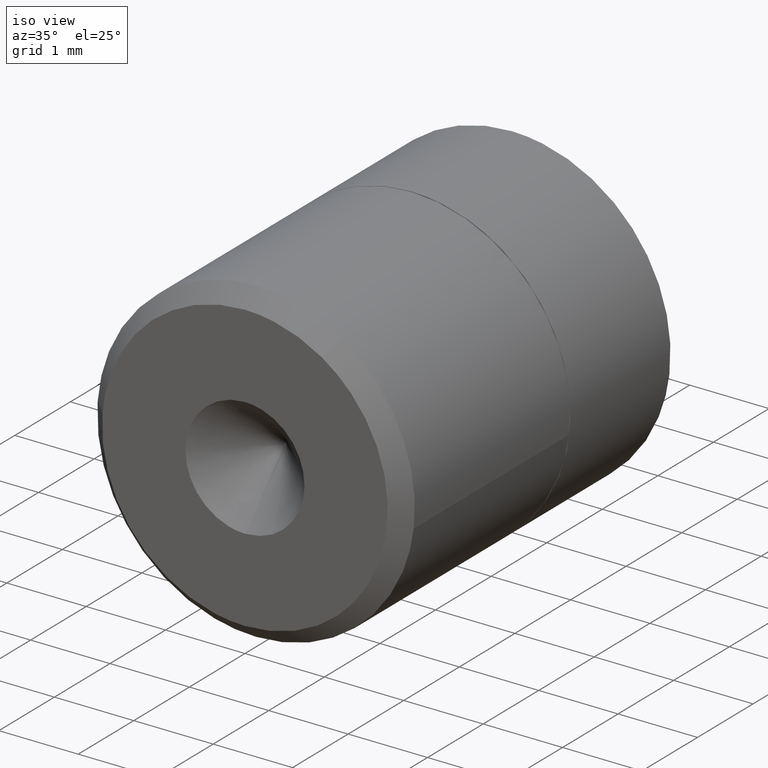
[diagram: clean part render]
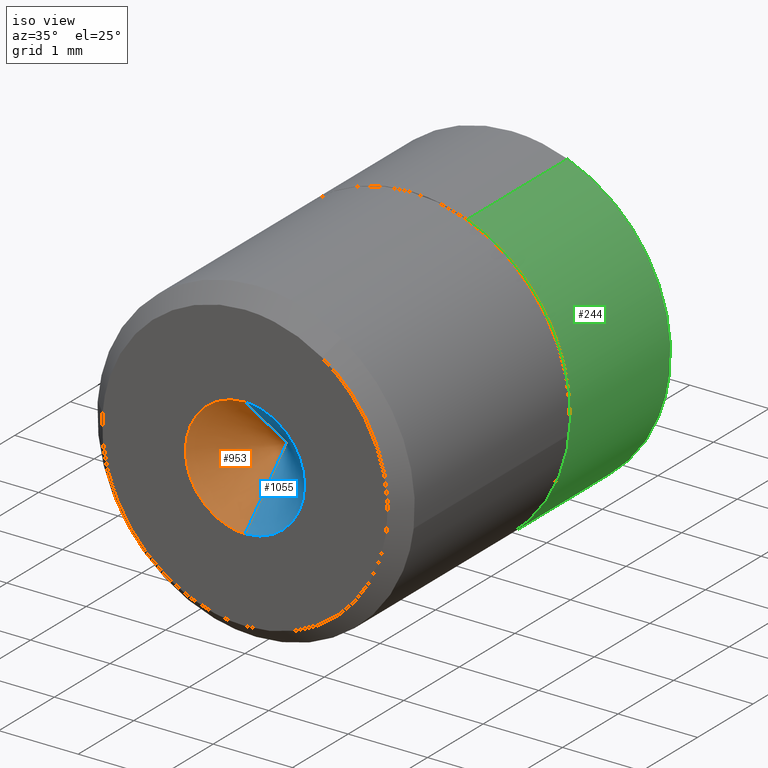
[diagram: same view with three faces highlighted in distinct colors, each labeled with its STEP entity id]
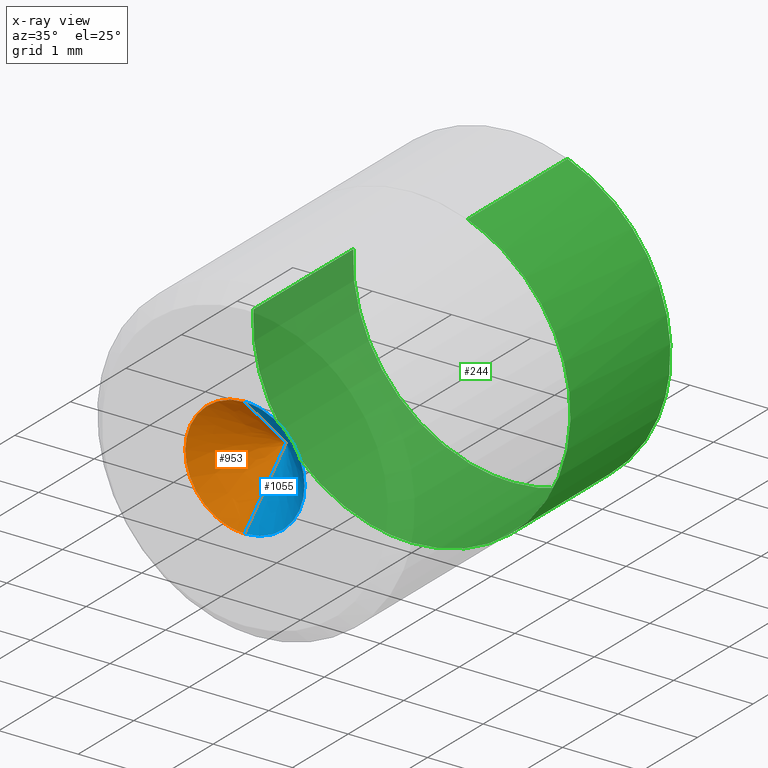
[diagram: x-ray of the same camera — body ghosted, the three highlighted faces saturated]
A machine part, iso view with three faces highlighted in distinct colors.
The next image is the same camera in x-ray (body ghosted, the three faces saturated) — at least one of them is partly hidden behind the body in this view.
Their STEP definitions:

[orange] entity #953 — the highlighted face is a freeform B-spline surface patch.
#902=CARTESIAN_POINT('',(0.0,0.750000000000014,-7.277231E-015));
#903=CARTESIAN_POINT('',(0.006712614727889,-0.019218750000000,-0.769189460507041));
#904=CARTESIAN_POINT('',(0.0,0.750000000000014,-7.277231E-015));
#905=CARTESIAN_POINT('',(-0.789806388675358,-0.019218750000000,-0.776140576542567));
#906=CARTESIAN_POINT('',(0.0,0.750000000000014,-7.277231E-015));
#907=CARTESIAN_POINT('',(-0.768955157946057,-0.019218750000000,0.020135799456190));
#908=CARTESIAN_POINT('',(0.0,0.750000000000014,-7.277231E-015));
#909=CARTESIAN_POINT('',(-0.748103927216757,-0.019218750000000,0.816412175454947));
#910=CARTESIAN_POINT('',(0.0,0.750000000000014,-7.277231E-015));
#911=CARTESIAN_POINT('',(0.046959681270329,-0.019218750000000,0.767784001973579));
#919=(BOUNDED_SURFACE()B_SPLINE_SURFACE(1,2,((#902,#904,#906,#908,#910),(#903,#905,#907,#909,#911)),.UNSPECIFIED.,.F.,.F.,.U.)B_SPLINE_SURFACE_WITH_KNOTS((2,2),(3,2,3),(0.0,1.0),(0.0,1.0,2.0),.UNSPECIFIED.)GEOMETRIC_REPRESENTATION_ITEM()RATIONAL_B_SPLINE_SURFACE(((1.0,0.694658370458997,1.0,0.694658370458997,1.0),(1.0,0.694658370458997,1.0,0.694658370458997,1.0)))REPRESENTATION_ITEM('')SURFACE());
#920=CARTESIAN_POINT('',(0.0,4.517509E-017,0.750000000000008));
#921=VERTEX_POINT('',#920);
#922=CARTESIAN_POINT('',(0.0,4.517509E-017,-0.750000000000022));
#923=VERTEX_POINT('',#922);
#924=CARTESIAN_POINT('',(0.0,0.0,0.750000000000008));
#925=CARTESIAN_POINT('',(-0.750000000000015,0.0,0.750000000000008));
#926=CARTESIAN_POINT('',(-0.750000000000015,0.0,-7.277231E-015));
#927=CARTESIAN_POINT('',(-0.750000000000015,0.0,-0.750000000000022));
#928=CARTESIAN_POINT('',(0.0,0.0,-0.750000000000022));
#936=(BOUNDED_CURVE()B_SPLINE_CURVE(2,(#924,#925,#926,#927,#928),.UNSPECIFIED.,.F.,.U.)B_SPLINE_CURVE_WITH_KNOTS((3,2,3),(0.0,0.500000000000000,1.0),.UNSPECIFIED.)CURVE()GEOMETRIC_REPRESENTATION_ITEM()RATIONAL_B_SPLINE_CURVE((1.0,0.707106781186548,1.0,0.707106781186548,1.0))REPRESENTATION_ITEM(''));
#937=EDGE_CURVE('',#921,#923,#936,.T.);
#938=ORIENTED_EDGE('',*,*,#937,.T.);
#939=CARTESIAN_POINT('',(0.0,0.750000000000011,-7.277231E-015));
#940=VERTEX_POINT('',#939);
#941=CARTESIAN_POINT('',(0.0,0.750000000000011,-7.277231E-015));
#942=CARTESIAN_POINT('',(0.0,4.517509E-017,-0.750000000000022));
#943=QUASI_UNIFORM_CURVE('',1,(#941,#942),.UNSPECIFIED.,.F.,.U.);
#944=EDGE_CURVE('',#940,#923,#943,.T.);
#945=ORIENTED_EDGE('',*,*,#944,.F.);
#946=CARTESIAN_POINT('',(0.0,0.750000000000011,-7.277231E-015));
#947=CARTESIAN_POINT('',(0.0,4.517509E-017,0.750000000000008));
#948=QUASI_UNIFORM_CURVE('',1,(#946,#947),.UNSPECIFIED.,.F.,.U.);
#949=EDGE_CURVE('',#940,#921,#948,.T.);
#950=ORIENTED_EDGE('',*,*,#949,.T.);
#951=EDGE_LOOP('',(#938,#945,#950));
#952=FACE_OUTER_BOUND('',#951,.T.);
#953=ADVANCED_FACE('',(#952),#919,.F.);

[blue] entity #1055 — the highlighted face is a freeform B-spline surface patch.
#920=CARTESIAN_POINT('',(0.0,4.517509E-017,0.750000000000008));
#921=VERTEX_POINT('',#920);
#922=CARTESIAN_POINT('',(0.0,4.517509E-017,-0.750000000000022));
#923=VERTEX_POINT('',#922);
#939=CARTESIAN_POINT('',(0.0,0.750000000000011,-7.277231E-015));
#940=VERTEX_POINT('',#939);
#941=CARTESIAN_POINT('',(0.0,0.750000000000011,-7.277231E-015));
#942=CARTESIAN_POINT('',(0.0,4.517509E-017,-0.750000000000022));
#943=QUASI_UNIFORM_CURVE('',1,(#941,#942),.UNSPECIFIED.,.F.,.U.);
#944=EDGE_CURVE('',#940,#923,#943,.T.);
#946=CARTESIAN_POINT('',(0.0,0.750000000000011,-7.277231E-015));
#947=CARTESIAN_POINT('',(0.0,4.517509E-017,0.750000000000008));
#948=QUASI_UNIFORM_CURVE('',1,(#946,#947),.UNSPECIFIED.,.F.,.U.);
#949=EDGE_CURVE('',#940,#921,#948,.T.);
#1013=CARTESIAN_POINT('',(0.0,0.0,-0.750000000000022));
#1014=CARTESIAN_POINT('',(0.750000000000015,0.0,-0.750000000000022));
#1015=CARTESIAN_POINT('',(0.750000000000015,0.0,-7.277231E-015));
#1016=CARTESIAN_POINT('',(0.750000000000015,0.0,0.750000000000008));
#1017=CARTESIAN_POINT('',(0.0,0.0,0.750000000000008));
#1025=(BOUNDED_CURVE()B_SPLINE_CURVE(2,(#1013,#1014,#1015,#1016,#1017),.UNSPECIFIED.,.F.,.U.)B_SPLINE_CURVE_WITH_KNOTS((3,2,3),(0.0,0.500000000000000,1.0),.UNSPECIFIED.)CURVE()GEOMETRIC_REPRESENTATION_ITEM()RATIONAL_B_SPLINE_CURVE((1.0,0.707106781186548,1.0,0.707106781186548,1.0))REPRESENTATION_ITEM(''));
#1026=EDGE_CURVE('',#923,#921,#1025,.T.);
#1032=CARTESIAN_POINT('',(0.0,0.750000000000014,-7.277231E-015));
#1033=CARTESIAN_POINT('',(-0.020135799456198,-0.019218750000000,0.768955157946050));
#1034=CARTESIAN_POINT('',(0.0,0.750000000000014,-7.277231E-015));
#1035=CARTESIAN_POINT('',(0.790173863219640,-0.019218750000000,0.790173863219635));
#1036=CARTESIAN_POINT('',(0.0,0.750000000000014,-7.277231E-015));
#1037=CARTESIAN_POINT('',(0.768955157946057,-0.019218750000000,-0.020135799456203));
#1038=CARTESIAN_POINT('',(0.0,0.750000000000014,-7.277231E-015));
#1039=CARTESIAN_POINT('',(0.747736452672475,-0.019218750000000,-0.830445462132042));
#1040=CARTESIAN_POINT('',(0.0,0.750000000000014,-7.277231E-015));
#1041=CARTESIAN_POINT('',(-0.060352207541903,-0.019218750000000,-0.766847505307552));
#1049=(BOUNDED_SURFACE()B_SPLINE_SURFACE(1,2,((#1032,#1034,#1036,#1038,#1040),(#1033,#1035,#1037,#1039,#1041)),.UNSPECIFIED.,.F.,.F.,.U.)B_SPLINE_SURFACE_WITH_KNOTS((2,2),(3,2,3),(0.0,1.0),(0.0,1.0,2.0),.UNSPECIFIED.)GEOMETRIC_REPRESENTATION_ITEM()RATIONAL_B_SPLINE_SURFACE(((1.0,0.688354575693754,1.0,0.688354575693754,1.0),(1.0,0.688354575693754,1.0,0.688354575693754,1.0)))REPRESENTATION_ITEM('')SURFACE());
#1050=ORIENTED_EDGE('',*,*,#944,.T.);
#1051=ORIENTED_EDGE('',*,*,#1026,.T.);
#1052=ORIENTED_EDGE('',*,*,#949,.F.);
#1053=EDGE_LOOP('',(#1050,#1051,#1052));
#1054=FACE_OUTER_BOUND('',#1053,.T.);
#1055=ADVANCED_FACE('',(#1054),#1049,.F.);

[green] entity #244 — the highlighted face is a freeform B-spline surface patch.
#62=CARTESIAN_POINT('',(0.703235474031004,4.800003000000000,1.872287335871314));
#63=VERTEX_POINT('',#62);
#79=CARTESIAN_POINT('',(-1.996269596843765,4.800002999999885,0.122097079070154));
#80=VERTEX_POINT('',#79);
#94=CARTESIAN_POINT('',(-1.996269638693471,3.0,0.122096394828707));
#95=VERTEX_POINT('',#94);
#96=CARTESIAN_POINT('',(-1.996269596843765,4.800002999999885,0.122097079070154));
#97=CARTESIAN_POINT('',(-1.996269638693471,3.0,0.122096394828707));
#98=QUASI_UNIFORM_CURVE('',1,(#96,#97),.UNSPECIFIED.,.F.,.U.);
#99=EDGE_CURVE('',#80,#95,#98,.T.);
#116=CARTESIAN_POINT('',(0.703235363436929,3.0,1.872287377410666));
#117=VERTEX_POINT('',#116);
#131=CARTESIAN_POINT('',(0.703235474031004,4.800003000000000,1.872287335871314));
#132=CARTESIAN_POINT('',(0.703235363436929,3.0,1.872287377410666));
#133=QUASI_UNIFORM_CURVE('',1,(#131,#132),.UNSPECIFIED.,.F.,.U.);
#134=EDGE_CURVE('',#63,#117,#133,.T.);
#139=CARTESIAN_POINT('',(-1.996269596843733,4.845003075000000,0.122097079069707));
#140=CARTESIAN_POINT('',(-2.118366675913447,4.845003074999999,-1.874172517774027));
#141=CARTESIAN_POINT('',(-0.122097079069714,4.845003075000000,-1.996269596843741));
#142=CARTESIAN_POINT('',(1.874172517774020,4.845003074999999,-2.118366675913454));
#143=CARTESIAN_POINT('',(1.996269596843733,4.845003075000000,-0.122097079069721));
#144=CARTESIAN_POINT('',(2.086474445738684,4.845003074999999,1.352739163606123));
#145=CARTESIAN_POINT('',(0.703235948783144,4.845003075000000,1.872287157553307));
#146=CARTESIAN_POINT('',(-1.996269596843733,2.953874923124999,0.122097079069707));
#147=CARTESIAN_POINT('',(-2.118366675913447,2.953874923124999,-1.874172517774027));
#148=CARTESIAN_POINT('',(-0.122097079069714,2.953874923124999,-1.996269596843741));
#149=CARTESIAN_POINT('',(1.874172517774020,2.953874923124999,-2.118366675913454));
#150=CARTESIAN_POINT('',(1.996269596843733,2.953874923124999,-0.122097079069721));
#151=CARTESIAN_POINT('',(2.086474445738684,2.953874923124999,1.352739163606123));
#152=CARTESIAN_POINT('',(0.703235948783144,2.953874923125000,1.872287157553307));
#160=(BOUNDED_SURFACE()B_SPLINE_SURFACE(2,1,((#139,#146),(#140,#147),(#141,#148),(#142,#149),(#143,#150),(#144,#151),(#145,#152)),.UNSPECIFIED.,.F.,.F.,.U.)B_SPLINE_SURFACE_WITH_KNOTS((3,2,2,3),(2,2),(0.0,3.313708498984759,6.627416997969518,9.278383797157325),(0.0,1.0),.UNSPECIFIED.)GEOMETRIC_REPRESENTATION_ITEM()RATIONAL_B_SPLINE_SURFACE(((1.0,1.0),(0.707106781186548,0.707106781186548),(1.0,1.0),(0.707106781186548,0.707106781186548),(1.0,1.0),(0.765685424949238,0.765685424949238),(0.906274169979695,0.906274169979695)))REPRESENTATION_ITEM('')SURFACE());
#161=CARTESIAN_POINT('',(1.986019052727345,4.800002999999828,-0.236068469314878));
#162=VERTEX_POINT('',#161);
#163=CARTESIAN_POINT('',(1.986019052727345,4.800002999999828,-0.236068469314878));
#164=CARTESIAN_POINT('',(2.0,4.800002999999999,-0.118448239305175));
#165=CARTESIAN_POINT('',(2.0,4.800002999999999,-7.277231E-015));
#166=CARTESIAN_POINT('',(2.0,4.800002999999998,1.385219941802166));
#167=CARTESIAN_POINT('',(0.703235474031004,4.800003000000000,1.872287335871315));
#175=(BOUNDED_CURVE()B_SPLINE_CURVE(2,(#163,#164,#165,#166,#167),.UNSPECIFIED.,.F.,.U.)B_SPLINE_CURVE_WITH_KNOTS((3,2,3),(0.229562473515417,0.250000000000000,0.440284251000991),.UNSPECIFIED.)CURVE()GEOMETRIC_REPRESENTATION_ITEM()RATIONAL_B_SPLINE_CURVE((0.956026754187441,0.976055948333382,1.0,0.777068132939251,0.893499652661760))REPRESENTATION_ITEM(''));
#176=EDGE_CURVE('',#162,#63,#175,.T.);
#177=ORIENTED_EDGE('',*,*,#176,.T.);
#178=ORIENTED_EDGE('',*,*,#134,.T.);
#179=CARTESIAN_POINT('',(0.0,3.0,-2.000000000000008));
#180=VERTEX_POINT('',#179);
#181=CARTESIAN_POINT('',(0.0,3.0,-2.000000000000008));
#182=CARTESIAN_POINT('',(2.000000000000000,3.0,-2.000000000000008));
#183=CARTESIAN_POINT('',(2.0,3.0,-7.277231E-015));
#184=CARTESIAN_POINT('',(2.000000000000000,3.000000000000001,1.385220116611858));
#185=CARTESIAN_POINT('',(0.703235363436929,3.0,1.872287377410667));
#193=(BOUNDED_CURVE()B_SPLINE_CURVE(2,(#181,#182,#183,#184,#185),.UNSPECIFIED.,.F.,.U.)B_SPLINE_CURVE_WITH_KNOTS((3,2,3),(0.0,0.250000000000000,0.440284269660865),.UNSPECIFIED.)CURVE()GEOMETRIC_REPRESENTATION_ITEM()RATIONAL_B_SPLINE_CURVE((1.0,0.707106781186548,1.0,0.777068111077849,0.893499675497047))REPRESENTATION_ITEM(''));
#194=EDGE_CURVE('',#180,#117,#193,.T.);
#195=ORIENTED_EDGE('',*,*,#194,.F.);
#196=CARTESIAN_POINT('',(-1.996269638693470,3.0,0.122096394828706));
#197=CARTESIAN_POINT('',(-2.000000000000000,3.000000000000000,0.061104840437647));
#198=CARTESIAN_POINT('',(-2.0,3.0,-7.277231E-015));
#199=CARTESIAN_POINT('',(-2.000000000000000,3.0,-2.000000000000008));
#200=CARTESIAN_POINT('',(0.0,3.0,-2.000000000000008));
#208=(BOUNDED_CURVE()B_SPLINE_CURVE(2,(#196,#197,#198,#199,#200),.UNSPECIFIED.,.F.,.U.)B_SPLINE_CURVE_WITH_KNOTS((3,2,3),(0.739333080526193,0.750000000000000,1.0),.UNSPECIFIED.)CURVE()GEOMETRIC_REPRESENTATION_ITEM()RATIONAL_B_SPLINE_CURVE((0.976072295178943,0.987502926481971,1.0,0.707106781186548,1.0))REPRESENTATION_ITEM(''));
#209=EDGE_CURVE('',#95,#180,#208,.T.);
#210=ORIENTED_EDGE('',*,*,#209,.F.);
#211=ORIENTED_EDGE('',*,*,#99,.F.);
#212=CARTESIAN_POINT('',(0.0,4.800002999999999,-2.000000000000008));
#213=VERTEX_POINT('',#212);
#214=CARTESIAN_POINT('',(-1.996269596843766,4.800002999999885,0.122097079070154));
#215=CARTESIAN_POINT('',(-2.0,4.800002999999999,0.061105526598061));
#216=CARTESIAN_POINT('',(-2.0,4.800002999999999,-7.277231E-015));
#217=CARTESIAN_POINT('',(-2.000000000000000,4.800003000000000,-2.000000000000008));
#218=CARTESIAN_POINT('',(0.0,4.800002999999999,-2.000000000000008));
#226=(BOUNDED_CURVE()B_SPLINE_CURVE(2,(#214,#215,#216,#217,#218),.UNSPECIFIED.,.F.,.U.)B_SPLINE_CURVE_WITH_KNOTS((3,2,3),(0.739332962241815,0.750000000000000,1.0),.UNSPECIFIED.)CURVE()GEOMETRIC_REPRESENTATION_ITEM()RATIONAL_B_SPLINE_CURVE((0.976072041672873,0.987502787903202,1.0,0.707106781186548,1.0))REPRESENTATION_ITEM(''));
#227=EDGE_CURVE('',#80,#213,#226,.T.);
#228=ORIENTED_EDGE('',*,*,#227,.T.);
#229=CARTESIAN_POINT('',(0.0,4.800002999999999,-2.000000000000008));
#230=CARTESIAN_POINT('',(1.776349051900332,4.800002999999999,-2.000000000000008));
#231=CARTESIAN_POINT('',(1.986019052727345,4.800002999999828,-0.236068469314878));
#239=(BOUNDED_CURVE()B_SPLINE_CURVE(2,(#229,#230,#231),.UNSPECIFIED.,.F.,.U.)B_SPLINE_CURVE_WITH_KNOTS((3,3),(0.0,0.229562473515417),.UNSPECIFIED.)CURVE()GEOMETRIC_REPRESENTATION_ITEM()RATIONAL_B_SPLINE_CURVE((1.0,0.731050832853166,0.956026754187441))REPRESENTATION_ITEM(''));
#240=EDGE_CURVE('',#213,#162,#239,.T.);
#241=ORIENTED_EDGE('',*,*,#240,.T.);
#242=EDGE_LOOP('',(#177,#178,#195,#210,#211,#228,#241));
#243=FACE_OUTER_BOUND('',#242,.T.);
#244=ADVANCED_FACE('',(#243),#160,.T.);